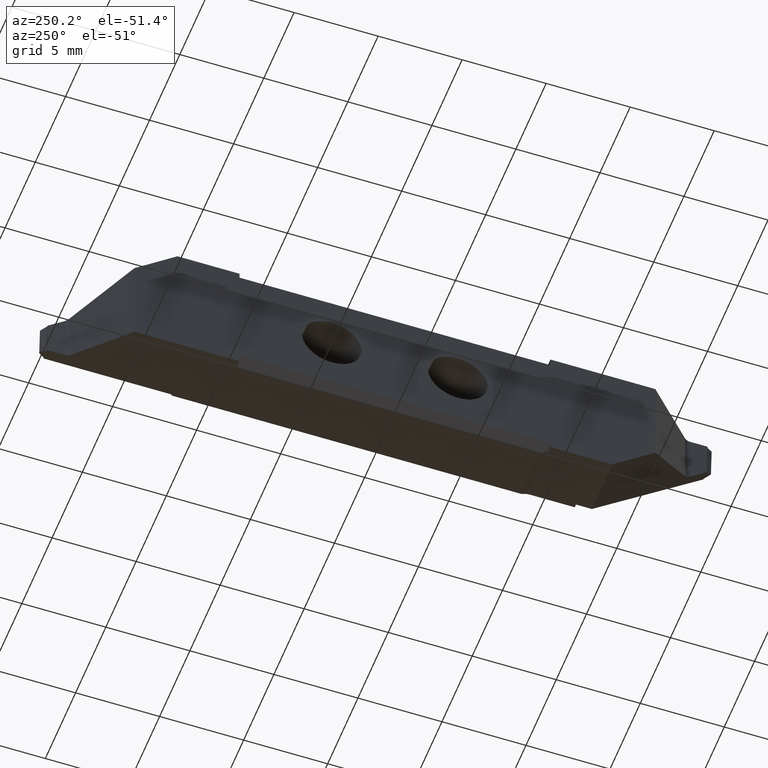
[diagram: clean part render]
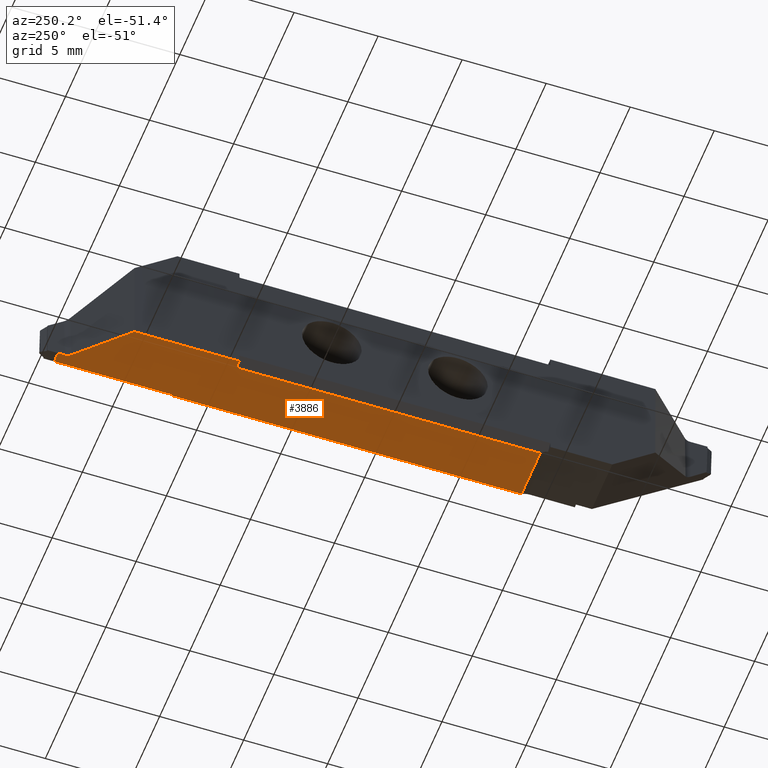
[diagram: same view with one face highlighted and labeled with its STEP entity id]
A machine part, auxiliary view. The second image highlights one B-rep face of the part: STEP entity #3886.
In plain terms, the highlighted planar face has unit normal (0, 0, 1).
Its self-contained STEP definition (entity closure, byte-faithful):
#160=CARTESIAN_POINT('',(-1.578118885E-06,29.25,-8.));
#161=VERTEX_POINT('',#160);
#172=CARTESIAN_POINT('',(-1.578118885E-06,29.25,-8.));
#173=DIRECTION('',(0.,1.,0.));
#174=VECTOR('',#173,6.247890219);
#175=LINE('',#172,#174);
#176=CARTESIAN_POINT('',(-1.578118885E-06,35.49789022,-8.));
#177=VERTEX_POINT('',#176);
#178=EDGE_CURVE('',#161,#177,#175,.T.);
#2414=CARTESIAN_POINT('',(3.529998422,32.,-8.000000696));
#2415=DIRECTION('',(1.,0.,-1.972648584E-07));
#2416=VECTOR('',#2415,0.07);
#2417=LINE('',#2414,#2416);
#2418=CARTESIAN_POINT('',(3.529998422,32.,-8.000000696));
#2419=VERTEX_POINT('',#2418);
#2420=CARTESIAN_POINT('',(3.599998422,32.,-8.00000071));
#2421=VERTEX_POINT('',#2420);
#2422=EDGE_CURVE('',#2419,#2421,#2417,.T.);
#2485=CARTESIAN_POINT('',(3.529998422,39.,-8.000000696));
#2486=DIRECTION('',(0.,-1.,0.));
#2487=VECTOR('',#2486,7.);
#2488=LINE('',#2485,#2487);
#2489=CARTESIAN_POINT('',(3.529998422,39.,-8.000000696));
#2490=VERTEX_POINT('',#2489);
#2491=EDGE_CURVE('',#2490,#2419,#2488,.T.);
#2598=CARTESIAN_POINT('',(3.529998422,39.,-8.000000696));
#2599=DIRECTION('',(-1.,0.,1.972648609E-07));
#2600=VECTOR('',#2599,0.6349971086);
#2601=LINE('',#2598,#2600);
#2602=CARTESIAN_POINT('',(2.895001313,39.,-8.000000571));
#2603=VERTEX_POINT('',#2602);
#2604=EDGE_CURVE('',#2490,#2603,#2601,.T.);
#2670=CARTESIAN_POINT('',(2.895001313,38.60007604,-8.000000571));
#2671=DIRECTION('',(0.,1.,0.));
#2672=VECTOR('',#2671,0.3999239562);
#2673=LINE('',#2670,#2672);
#2674=CARTESIAN_POINT('',(2.895001313,38.60007604,-8.000000571));
#2675=VERTEX_POINT('',#2674);
#2676=EDGE_CURVE('',#2675,#2603,#2673,.T.);
#3335=CARTESIAN_POINT('',(2.74847854,38.24637034,-8.000000542));
#3336=VERTEX_POINT('',#3335);
#3347=CARTESIAN_POINT('',(2.74847854,38.24637034,-8.000000542));
#3348=CARTESIAN_POINT('',(2.843548304,38.3414401,-8.000000561));
#3349=CARTESIAN_POINT('',(2.895001313,38.46564757,-8.000000571));
#3350=CARTESIAN_POINT('',(2.895001313,38.60007604,-8.000000571));
#3351=(BOUNDED_CURVE()B_SPLINE_CURVE(3,(#3347,#3348,#3349,#3350),.UNSPECIFIED.,.F.,.F.)B_SPLINE_CURVE_WITH_KNOTS((4,4),(0.,1.),.UNSPECIFIED.)CURVE()GEOMETRIC_REPRESENTATION_ITEM()RATIONAL_B_SPLINE_CURVE((1.,0.9492335932,0.9492335932,1.))REPRESENTATION_ITEM('')
);
#3352=EDGE_CURVE('',#3336,#2675,#3351,.T.);
#3711=CARTESIAN_POINT('',(-1.578118885E-06,35.49789022,-8.));
#3712=DIRECTION('',(0.7071067812,0.7071067812,-1.394873204E-07));
#3713=VECTOR('',#3712,3.886937859);
#3714=LINE('',#3711,#3713);
#3715=EDGE_CURVE('',#177,#3336,#3714,.T.);
#3754=CARTESIAN_POINT('',(2.199998422,22.72043333,-8.000000434));
#3755=DIRECTION('',(1.972648607E-07,0.,1.));
#3756=DIRECTION('',(1.,0.,0.));
#3757=AXIS2_PLACEMENT_3D('',#3754,#3755,#3756);
#3758=PLANE('',#3757);
#3759=CARTESIAN_POINT('',(0.4999984219,29.25,-8.000000099));
#3760=DIRECTION('',(-1.,0.,1.972648622E-07));
#3761=VECTOR('',#3760,0.5);
#3762=LINE('',#3759,#3761);
#3763=CARTESIAN_POINT('',(0.4999984219,29.25,-8.000000099));
#3764=VERTEX_POINT('',#3763);
#3765=EDGE_CURVE('',#3764,#161,#3762,.T.);
#3766=ORIENTED_EDGE('Edge 473',*,*,#3765,.T.);
#3775=CARTESIAN_POINT('',(0.4999984219,11.17218802,-8.000000099));
#3776=DIRECTION('',(0.,1.,0.));
#3777=VECTOR('',#3776,18.07781198);
#3778=LINE('',#3775,#3777);
#3779=CARTESIAN_POINT('',(0.4999984219,11.17218802,-8.000000099));
#3780=VERTEX_POINT('',#3779);
#3781=EDGE_CURVE('',#3780,#3764,#3778,.T.);
#3782=ORIENTED_EDGE('Edge 478',*,*,#3781,.T.);
#3791=CARTESIAN_POINT('',(3.599998422,11.17218802,-8.00000071));
#3792=DIRECTION('',(-1.,-2.865091676E-15,1.972648602E-07));
#3793=VECTOR('',#3792,3.1);
#3794=LINE('',#3791,#3793);
#3795=CARTESIAN_POINT('',(3.599998422,11.17218802,-8.00000071));
#3796=VERTEX_POINT('',#3795);
#3797=EDGE_CURVE('',#3796,#3780,#3794,.T.);
#3798=ORIENTED_EDGE('Edge 483',*,*,#3797,.T.);
#3807=CARTESIAN_POINT('',(3.599998422,11.17218802,-8.00000071));
#3808=DIRECTION('',(0.,1.,0.));
#3809=VECTOR('',#3808,20.82781198);
#3810=LINE('',#3807,#3809);
#3811=EDGE_CURVE('',#3796,#2421,#3810,.T.);
#3812=ORIENTED_EDGE('Edge 217',*,*,#3811,.F.);
#3821=ORIENTED_EDGE('Edge 493',*,*,#2422,.T.);
#3830=ORIENTED_EDGE('Edge 498',*,*,#2491,.T.);
#3839=ORIENTED_EDGE('Edge 503',*,*,#2604,.F.);
#3848=ORIENTED_EDGE('Edge 508',*,*,#2676,.T.);
#3857=ORIENTED_EDGE('Edge 513',*,*,#3352,.T.);
#3866=ORIENTED_EDGE('Edge 518',*,*,#3715,.T.);
#3875=ORIENTED_EDGE('Edge 523',*,*,#178,.T.);
#3884=EDGE_LOOP('',(#3875,#3866,#3857,#3848,#3839,#3830,#3821,#3812,#3798,#3782,#3766));
#3885=FACE_OUTER_BOUND('Loop 524',#3884,.T.);
#3886=ADVANCED_FACE('Face 525',(#3885),#3758,.F.);